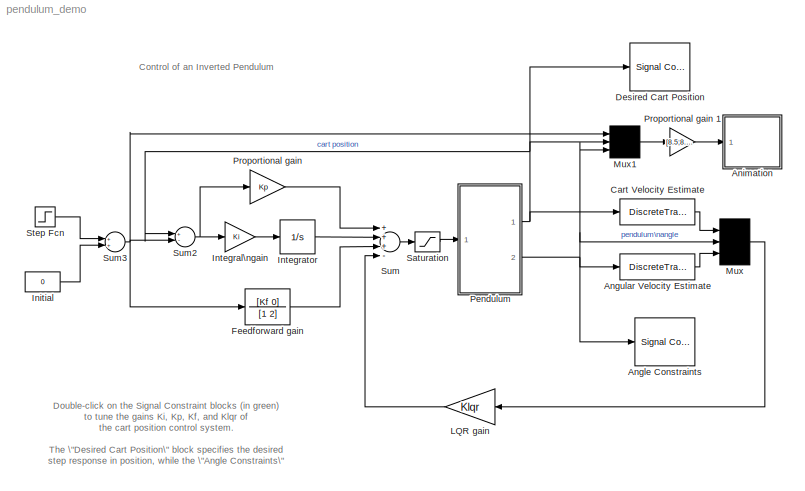
MODEL pendulum_demo
KIND model
CONFIG PreLoadFcn = load pendulum_demo
BLOCK [Reference] Angle Constraints  REF=srolib/Signal Constraint  (lib defined in mdl_d992e5ea460a)
  DialogPosition = [0.2825 0.305 0.263125 0.2475]
  LogID = SRO_DataLog_1
  Ports = [1]
  SaveAs = pendulum_optim
  SaveIn = workspace
  ShowPortLabels = on
  SourceBlock = srolib/Signal Constraint
  SourceType = Signal Constraint
BLOCK [DiscreteTransferFcn] Angular Velocity Estimate
  Denominator = [(1+ts*a)  -1]
  MaskCallbackString = |
  MaskDescription = Finite difference velocity estimator with filter.
  MaskDisplay = disp('FD w/ filter')
  MaskEnableString = on,on
  MaskIconFrame = on
  MaskIconOpaque = on
  MaskIconRotate = none
  MaskIconUnits = autoscale
  MaskInitialization = hz =@1; a=hz*2*pi; ts=@2;
  MaskPromptString = Cutoff frequency( hz ):|Sample time:
  MaskStyleString = edit,edit
  MaskTabNameString = ,
  MaskToolTipString = on,on
  MaskTunableValueString = on,on
  MaskType = Finite difference velocity estimator with filter.
  MaskValueString = 10|0.01
  MaskVarAliasString = ,
  MaskVisibilityString = on,on
  Numerator = a*[1 -1]
  SampleTime = ts
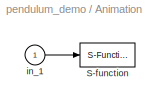
BLOCK [SubSystem] Animation
  MaskDescription = Pendulum plot
  MaskDisplay = plot([-10 10],[0 0],[-2 -2 2 2],[0 1 1 0],[0 3],[1 5])
  MaskEnableString = on
  MaskHelp = Pendulum animation function using Handle graphics.
  MaskIconFrame = on
  MaskIconOpaque = on
  MaskIconRotate = none
  MaskIconUnits = autoscale
  MaskInitialization = RefBlock=&1;\n
  MaskPromptString = DC reference signal block name:
  MaskStyleString = edit
  MaskToolTipString = on
  MaskTunableValueString = on
  MaskType = Pendulum plot
  MaskValueString = Initial
  MaskVisibilityString = on
  MinAlgLoopOccurrences = off
  Ports = [1]
  PropExecContextAcrossSSBoundary = on
  RTWSystemCode = Auto
  TreatAsAtomicUnit = off
BLOCK [S-Function] Animation/S-function
  DeleteFcn = pendan([],[],[],'DeleteBlock');
  FunctionName = pendan
  Parameters = RefBlock
  Ports = [1]
BLOCK [Inport] Animation/in_1
  IconDisplay = Port number
  LatchInput = off
BLOCK [DiscreteTransferFcn] Cart Velocity Estimate
  Denominator = [(1+ts*a)  -1]
  MaskCallbackString = |
  MaskDescription = Finite difference velocity estimator with filter.
  MaskDisplay = disp('FD w/ filter')
  MaskEnableString = on,on
  MaskIconFrame = on
  MaskIconOpaque = on
  MaskIconRotate = none
  MaskIconUnits = autoscale
  MaskInitialization = hz =@1; a=hz*2*pi; ts=@2;
  MaskPromptString = Cutoff frequency( hz ):|Sample time:
  MaskStyleString = edit,edit
  MaskTabNameString = ,
  MaskToolTipString = on,on
  MaskTunableValueString = on,on
  MaskType = Finite difference velocity estimator with filter.
  MaskValueString = 10|0.01
  MaskVarAliasString = ,
  MaskVisibilityString = on,on
  Numerator = a*[1 -1]
  SampleTime = ts
BLOCK [Reference] Desired Cart Position  REF=srolib/Signal Constraint  (lib defined in mdl_d992e5ea460a)
  DialogPosition = [0.01125 0.305 0.265625 0.2475]
  LogID = SRO_DataLog_2
  Ports = [1]
  SaveAs = pendulum_optim
  SaveIn = workspace
  ShowPortLabels = on
  SourceBlock = srolib/Signal Constraint
  SourceType = Signal Constraint
BLOCK [TransferFcn] Feedforward gain
  Denominator = [1 2]
  Numerator = [Kf 0]
BLOCK [Constant] Initial
  Value = 0
BLOCK [Gain] Integral\ngain
  Gain = Ki
BLOCK [Integrator] Integrator
  LimitOutput = on
  LowerSaturationLimit = -5
  Ports = [1, 1]
  UpperSaturationLimit = 5
BLOCK [Gain] LQR gain
  Gain = Klqr
  Multiplication = Matrix(K*u)
  OutDataTypeMode = Inherit via internal rule
  ParameterDataTypeMode = Inherit via internal rule
  SaturateOnIntegerOverflow = off
BLOCK [Mux] Mux
  Inputs = 3
  Ports = [3, 1]
BLOCK [Mux] Mux1
  Inputs = 3
  Ports = [3, 1]
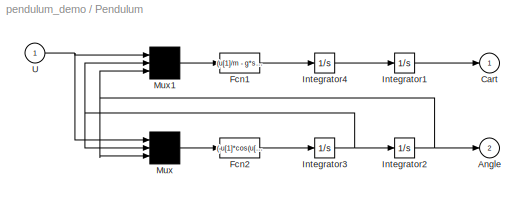
BLOCK [SubSystem] Pendulum
  MaskCallbackString = |||
  MaskDescription = Unmask and double-click to see dynamics
  MaskEnableString = on,on,on,on
  MaskHelp = Nonlinear dynamics of inverted pendulum on cart.
  MaskIconFrame = on
  MaskIconOpaque = on
  MaskIconRotate = none
  MaskIconUnits = autoscale
  MaskInitialization = M=@1; m=@2; l=@3; g=@4;
  MaskPromptString = Mass of cart (kg):|Mass of pendulum (kg):|Distance to pendulum center of mass(m):|Acceleration of gravity (m/s^2):
  MaskStyleString = edit,edit,edit,edit
  MaskTabNameString = ,,,
  MaskToolTipString = on,on,on,on
  MaskTunableValueString = on,on,on,on
  MaskType = Inverted pendulum on cart
  MaskValueString = 0.455|0.21|0.61/2|9.8
  MaskVarAliasString = ,,,
  MaskVisibilityString = on,on,on,on
  MinAlgLoopOccurrences = off
  Ports = [1, 2]
  PropExecContextAcrossSSBoundary = on
  RTWSystemCode = Auto
  TreatAsAtomicUnit = off
BLOCK [Outport] Pendulum/Angle
  BusOutputAsStruct = off
  IconDisplay = Port number
  InitialOutput = 0
  Port = 2
BLOCK [Outport] Pendulum/Cart
  BusOutputAsStruct = off
  IconDisplay = Port number
  InitialOutput = 0
BLOCK [Fcn] Pendulum/Fcn1
  Expr = (u[1]/m - g*sin(u[3])*cos(u[3]) + l*power(u[2],2)*sin(u[3]))/(M/m + power(sin(u[3]),2))
BLOCK [Fcn] Pendulum/Fcn2
  Expr = (-u[1]*cos(u[3])/m + (M+m)*g*sin(u[3])/m - l*power(u[2],2)*sin(u[3])*cos(u[3]))/(l*(M/m + power(sin(u[3]),2)))
BLOCK [Integrator] Pendulum/Integrator1
  Ports = [1, 1]
BLOCK [Integrator] Pendulum/Integrator2
  Ports = [1, 1]
BLOCK [Integrator] Pendulum/Integrator3
  Ports = [1, 1]
BLOCK [Integrator] Pendulum/Integrator4
  Ports = [1, 1]
BLOCK [Mux] Pendulum/Mux
  Inputs = 3
  Ports = [3, 1]
BLOCK [Mux] Pendulum/Mux1
  Inputs = 3
  Ports = [3, 1]
BLOCK [Inport] Pendulum/U
  IconDisplay = Port number
  LatchInput = off
BLOCK [Gain] Proportional gain 
  Gain = Kp
BLOCK [Gain] Proportional gain 1
  Gain = [8.5;8.5;1]
BLOCK [Saturate] Saturation
  LowerLimit = -1
  UpperLimit = 1
BLOCK [Step] Step Fcn
  SampleTime = 0
  Time = 0
BLOCK [Sum] Sum
  Inputs = +++-
  Ports = [4, 1]
BLOCK [Sum] Sum2
  Inputs = +-
  Ports = [2, 1]
BLOCK [Sum] Sum3
  Ports = [2, 1]
ANNOTATION (root): Control of an Inverted Pendulum
ANNOTATION (root): Double-click on the Signal Constraint blocks (in green)\nto tune the gains Ki, Kp, Kf, and Klqr of\nthe cart position control system.\n\nThe \"Desired Cart Position\" block specifies the desired\nstep response in position, while the \"Angle Constraints\" \nblock limits the pendulum swing.
LINE Angular Velocity Estimate:1 -> Mux:3
LINE Animation/in_1:1 -> Animation/S-function:1
LINE Cart Velocity Estimate:1 -> Mux:1
LINE Feedforward gain:1 -> Sum:3
LINE Initial:1 -> Sum3:2
LINE Integral\ngain:1 -> Integrator:1
LINE Integrator:1 -> Sum:2
LINE LQR gain:1 -> Sum:4
LINE Mux1:1 -> Proportional gain 1:1
LINE Mux:1 -> LQR gain:1
LINE Pendulum/Fcn1:1 -> Pendulum/Integrator4:1
LINE Pendulum/Fcn2:1 -> Pendulum/Integrator3:1
LINE Pendulum/Integrator1:1 -> Pendulum/Cart:1
NET Pendulum/Integrator2:1 -> Pendulum/Angle:1, Pendulum/Mux1:3, Pendulum/Mux:3
NET Pendulum/Integrator3:1 -> Pendulum/Integrator2:1, Pendulum/Mux1:2, Pendulum/Mux:2
LINE Pendulum/Integrator4:1 -> Pendulum/Integrator1:1
LINE Pendulum/Mux1:1 -> Pendulum/Fcn1:1
LINE Pendulum/Mux:1 -> Pendulum/Fcn2:1
NET Pendulum/U:1 -> Pendulum/Mux1:1, Pendulum/Mux:1
NET Pendulum:1 -> Cart Velocity Estimate:1, Desired Cart Position:1, Mux1:2, Sum2:1
NET Pendulum:2 -> Angle Constraints:1, Angular Velocity Estimate:1, Mux1:3, Mux:2
LINE Proportional gain 1:1 -> Animation:1
LINE Proportional gain :1 -> Sum:1
LINE Saturation:1 -> Pendulum:1
LINE Step Fcn:1 -> Sum3:1
NET Sum2:1 -> Integral\ngain:1, Proportional gain :1
NET Sum3:1 -> Feedforward gain:1, Mux1:1, Sum2:2
LINE Sum:1 -> Saturation:1
note: NET lines group one-source signal fan-out (src -> all destinations, sorted); 1:1 wires keep LINE
